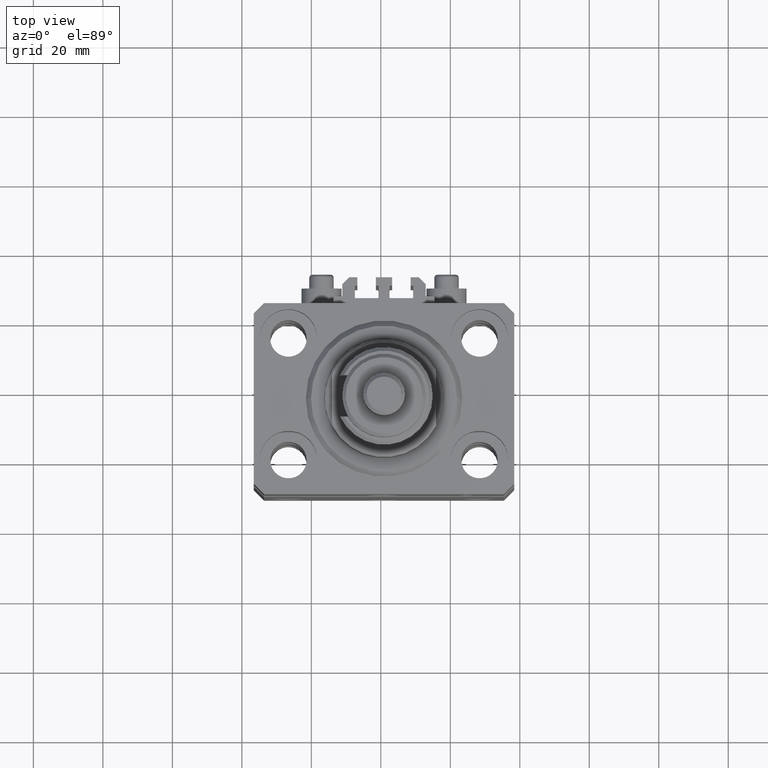
[diagram: clean part render]
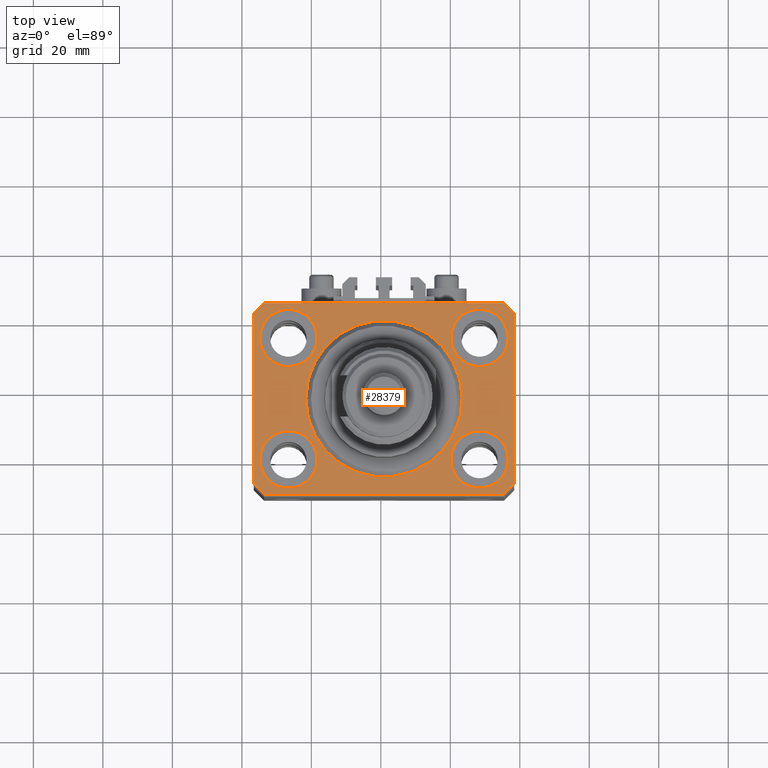
[diagram: same view with one face highlighted and labeled with its STEP entity id]
A machine part, top view. The second image highlights one B-rep face of the part: STEP entity #28379.
In plain terms, the highlighted planar face has unit normal (0, 0, 1).
Its self-contained STEP definition (entity closure, byte-faithful):
#39 = DIRECTION ( 'NONE',  ( 1.000000000000000000, 0.000000000000000000, 0.000000000000000000 ) ) ;
#339 = DIRECTION ( 'NONE',  ( 0.000000000000000000, 0.000000000000000000, 1.000000000000000000 ) ) ;
#343 = CARTESIAN_POINT ( 'NONE',  ( -27.50000000000000355, 17.50000000000000000, 0.000000000000000000 ) ) ;
#988 = CARTESIAN_POINT ( 'NONE',  ( -37.49999999999999289, 24.50000000000000000, 0.000000000000000000 ) ) ;
#1227 = LINE ( 'NONE', #9563, #14977 ) ;
#1230 = CIRCLE ( 'NONE', #23117, 8.250000000000000000 ) ;
#2059 = AXIS2_PLACEMENT_3D ( 'NONE', #41956, #22427, #19109 ) ;
#2349 = PLANE ( 'NONE',  #37253 ) ;
#2574 = VERTEX_POINT ( 'NONE', #46888 ) ;
#3100 = FACE_BOUND ( 'NONE', #13973, .T. ) ;
#3243 = EDGE_CURVE ( 'NONE', #42486, #8229, #31081, .T. ) ;
#3634 = CARTESIAN_POINT ( 'NONE',  ( 27.50000000000000355, -17.50000000000000000, 0.000000000000000000 ) ) ;
#3864 = EDGE_CURVE ( 'NONE', #18026, #38763, #23008, .T. ) ;
#4001 = CARTESIAN_POINT ( 'NONE',  ( 37.49999999999999289, -24.50000000000000000, 0.000000000000000000 ) ) ;
#4267 = ORIENTED_EDGE ( 'NONE', *, *, #44612, .T. ) ;
#5315 = CARTESIAN_POINT ( 'NONE',  ( -27.50000000000000355, -17.50000000000000000, 0.000000000000000000 ) ) ;
#5424 = ORIENTED_EDGE ( 'NONE', *, *, #7334, .F. ) ;
#5511 = ORIENTED_EDGE ( 'NONE', *, *, #29524, .F. ) ;
#5599 = ORIENTED_EDGE ( 'NONE', *, *, #32065, .T. ) ;
#5750 = CARTESIAN_POINT ( 'NONE',  ( -35.75000000000000711, 17.50000000000000000, 0.000000000000000000 ) ) ;
#5771 = DIRECTION ( 'NONE',  ( -1.000000000000000000, 0.000000000000000000, 0.000000000000000000 ) ) ;
#5837 = EDGE_CURVE ( 'NONE', #10716, #7855, #1227, .T. ) ;
#6001 = EDGE_CURVE ( 'NONE', #6476, #37050, #21999, .T. ) ;
#6081 = CARTESIAN_POINT ( 'NONE',  ( 19.25000000000000000, -17.50000000000000000, 0.000000000000000000 ) ) ;
#6476 = VERTEX_POINT ( 'NONE', #14303 ) ;
#6526 = DIRECTION ( 'NONE',  ( 0.7071067811865474617, 0.7071067811865474617, 0.000000000000000000 ) ) ;
#6550 = EDGE_CURVE ( 'NONE', #18765, #8607, #1230, .T. ) ;
#6802 = ORIENTED_EDGE ( 'NONE', *, *, #19095, .T. ) ;
#6972 = CIRCLE ( 'NONE', #32050, 22.50000000000000355 ) ;
#7334 = EDGE_CURVE ( 'NONE', #35199, #9966, #27968, .T. ) ;
#7731 = EDGE_CURVE ( 'NONE', #9966, #35199, #6972, .T. ) ;
#7763 = CARTESIAN_POINT ( 'NONE',  ( -27.50000000000000355, -17.50000000000000000, 0.000000000000000000 ) ) ;
#7855 = VERTEX_POINT ( 'NONE', #24858 ) ;
#8000 = DIRECTION ( 'NONE',  ( 1.000000000000000000, 0.000000000000000000, 0.000000000000000000 ) ) ;
#8229 = VERTEX_POINT ( 'NONE', #36093 ) ;
#8530 = CARTESIAN_POINT ( 'NONE',  ( 34.50000000000056843, 27.50000000000000000, 0.000000000000000000 ) ) ;
#8607 = VERTEX_POINT ( 'NONE', #6081 ) ;
#9563 = CARTESIAN_POINT ( 'NONE',  ( 34.50000000000056843, 27.50000000000000000, 0.000000000000000000 ) ) ;
#9966 = VERTEX_POINT ( 'NONE', #29078 ) ;
#10076 = EDGE_CURVE ( 'NONE', #7855, #30155, #12457, .T. ) ;
#10716 = VERTEX_POINT ( 'NONE', #8530 ) ;
#11430 = CARTESIAN_POINT ( 'NONE',  ( 0.000000000000000000, 0.000000000000000000, 0.000000000000000000 ) ) ;
#11991 = DIRECTION ( 'NONE',  ( 1.000000000000000000, 0.000000000000000000, 0.000000000000000000 ) ) ;
#12431 = AXIS2_PLACEMENT_3D ( 'NONE', #35079, #339, #11991 ) ;
#12457 = LINE ( 'NONE', #44151, #49179 ) ;
#12878 = ORIENTED_EDGE ( 'NONE', *, *, #43076, .F. ) ;
#12980 = VECTOR ( 'NONE', #27090, 1000.000000000000000 ) ;
#13472 = CIRCLE ( 'NONE', #30505, 8.250000000000000000 ) ;
#13731 = EDGE_CURVE ( 'NONE', #8229, #42486, #24162, .T. ) ;
#13973 = EDGE_LOOP ( 'NONE', ( #43295, #19449 ) ) ;
#14303 = CARTESIAN_POINT ( 'NONE',  ( 34.49999999999999289, -27.49999999999999645, 0.000000000000000000 ) ) ;
#14527 = CARTESIAN_POINT ( 'NONE',  ( -19.25000000000000355, 17.50000000000000000, 0.000000000000000000 ) ) ;
#14783 = EDGE_CURVE ( 'NONE', #2574, #30726, #50036, .T. ) ;
#14977 = VECTOR ( 'NONE', #5771, 1000.000000000000000 ) ;
#15835 = DIRECTION ( 'NONE',  ( 1.000000000000000000, 0.000000000000000000, 0.000000000000000000 ) ) ;
#15897 = CARTESIAN_POINT ( 'NONE',  ( 35.74999999999999289, 17.50000000000001066, 0.000000000000000000 ) ) ;
#16729 = DIRECTION ( 'NONE',  ( 1.000000000000000000, 0.000000000000000000, 0.000000000000000000 ) ) ;
#16984 = DIRECTION ( 'NONE',  ( 1.000000000000000000, 0.000000000000000000, 0.000000000000000000 ) ) ;
#17593 = VECTOR ( 'NONE', #35037, 1000.000000000000000 ) ;
#17744 = CARTESIAN_POINT ( 'NONE',  ( 37.49999999999999289, -24.50000000000000000, 0.000000000000000000 ) ) ;
#17912 = VERTEX_POINT ( 'NONE', #40137 ) ;
#18026 = VERTEX_POINT ( 'NONE', #14527 ) ;
#18495 = ORIENTED_EDGE ( 'NONE', *, *, #7731, .F. ) ;
#18571 = FACE_BOUND ( 'NONE', #31158, .T. ) ;
#18765 = VERTEX_POINT ( 'NONE', #24688 ) ;
#19095 = EDGE_CURVE ( 'NONE', #44574, #35340, #26942, .T. ) ;
#19109 = DIRECTION ( 'NONE',  ( 1.000000000000000000, 0.000000000000000000, 0.000000000000000000 ) ) ;
#19449 = ORIENTED_EDGE ( 'NONE', *, *, #13731, .F. ) ;
#19677 = DIRECTION ( 'NONE',  ( 1.000000000000000000, 0.000000000000000000, 0.000000000000000000 ) ) ;
#20785 = DIRECTION ( 'NONE',  ( 0.000000000000000000, 0.000000000000000000, 1.000000000000000000 ) ) ;
#20933 = DIRECTION ( 'NONE',  ( 0.000000000000000000, -1.000000000000000000, 0.000000000000000000 ) ) ;
#21296 = CARTESIAN_POINT ( 'NONE',  ( -34.49999999999998579, -27.49999999999999645, 0.000000000000000000 ) ) ;
#21387 = ORIENTED_EDGE ( 'NONE', *, *, #6550, .F. ) ;
#21604 = FACE_BOUND ( 'NONE', #48170, .T. ) ;
#21866 = LINE ( 'NONE', #37086, #33469 ) ;
#21999 = LINE ( 'NONE', #29121, #29569 ) ;
#22427 = DIRECTION ( 'NONE',  ( 0.000000000000000000, 0.000000000000000000, 1.000000000000000000 ) ) ;
#22735 = VECTOR ( 'NONE', #20933, 1000.000000000000000 ) ;
#22837 = ORIENTED_EDGE ( 'NONE', *, *, #3864, .F. ) ;
#23008 = CIRCLE ( 'NONE', #35975, 8.250000000000000000 ) ;
#23117 = AXIS2_PLACEMENT_3D ( 'NONE', #3634, #36273, #16984 ) ;
#23303 = AXIS2_PLACEMENT_3D ( 'NONE', #5315, #20785, #16729 ) ;
#24162 = CIRCLE ( 'NONE', #43598, 8.249999999999992895 ) ;
#24350 = EDGE_LOOP ( 'NONE', ( #42295, #34953, #39488, #6802, #4267, #33213, #5599, #29649 ) ) ;
#24688 = CARTESIAN_POINT ( 'NONE',  ( 35.75000000000000711, -17.50000000000000000, 0.000000000000000000 ) ) ;
#24858 = CARTESIAN_POINT ( 'NONE',  ( -34.49999999999999289, 27.50000000000000000, 0.000000000000000000 ) ) ;
#25315 = DIRECTION ( 'NONE',  ( 1.000000000000000000, 0.000000000000000000, 0.000000000000000000 ) ) ;
#25560 = CARTESIAN_POINT ( 'NONE',  ( -34.49999999999998579, -27.49999999999999645, 0.000000000000000000 ) ) ;
#25668 = DIRECTION ( 'NONE',  ( -0.7071067811865356934, 0.7071067811865594521, 0.000000000000000000 ) ) ;
#26942 = LINE ( 'NONE', #27692, #17593 ) ;
#26985 = DIRECTION ( 'NONE',  ( 0.000000000000000000, 0.000000000000000000, 1.000000000000000000 ) ) ;
#27090 = DIRECTION ( 'NONE',  ( 1.076236605503979380E-14, 1.000000000000000000, 0.000000000000000000 ) ) ;
#27171 = DIRECTION ( 'NONE',  ( 0.000000000000000000, 0.000000000000000000, 1.000000000000000000 ) ) ;
#27692 = CARTESIAN_POINT ( 'NONE',  ( -37.49999999999999289, -24.50000000000000000, 0.000000000000000000 ) ) ;
#27717 = DIRECTION ( 'NONE',  ( 1.000000000000000000, 0.000000000000000000, 0.000000000000000000 ) ) ;
#27968 = CIRCLE ( 'NONE', #2059, 22.50000000000000355 ) ;
#28133 = ORIENTED_EDGE ( 'NONE', *, *, #14783, .F. ) ;
#28379 = ADVANCED_FACE ( 'NONE', ( #21604, #37839, #3100, #37085, #18571, #29232 ), #2349, .T. ) ;
#28455 = DIRECTION ( 'NONE',  ( -0.7071067811865471286, -0.7071067811865479058, 0.000000000000000000 ) ) ;
#29078 = CARTESIAN_POINT ( 'NONE',  ( -22.50000000000000355, 2.755455298081545172E-15, 0.000000000000000000 ) ) ;
#29121 = CARTESIAN_POINT ( 'NONE',  ( 34.49999999999999289, -27.49999999999999645, 0.000000000000000000 ) ) ;
#29133 = CARTESIAN_POINT ( 'NONE',  ( -37.49999999999999289, -24.50000000000000000, 0.000000000000000000 ) ) ;
#29232 = FACE_OUTER_BOUND ( 'NONE', #24350, .T. ) ;
#29524 = EDGE_CURVE ( 'NONE', #30726, #2574, #40540, .T. ) ;
#29569 = VECTOR ( 'NONE', #6526, 1000.000000000000114 ) ;
#29633 = EDGE_CURVE ( 'NONE', #30155, #44574, #47848, .T. ) ;
#29649 = ORIENTED_EDGE ( 'NONE', *, *, #39391, .T. ) ;
#30155 = VERTEX_POINT ( 'NONE', #988 ) ;
#30505 = AXIS2_PLACEMENT_3D ( 'NONE', #343, #26985, #42445 ) ;
#30726 = VERTEX_POINT ( 'NONE', #47796 ) ;
#31081 = CIRCLE ( 'NONE', #12431, 8.249999999999992895 ) ;
#31158 = EDGE_LOOP ( 'NONE', ( #5424, #18495 ) ) ;
#32050 = AXIS2_PLACEMENT_3D ( 'NONE', #11430, #27171, #39 ) ;
#32065 = EDGE_CURVE ( 'NONE', #37050, #17912, #38259, .T. ) ;
#32515 = CARTESIAN_POINT ( 'NONE',  ( 27.49999999999999645, 17.50000000000001066, 0.000000000000000000 ) ) ;
#33213 = ORIENTED_EDGE ( 'NONE', *, *, #6001, .T. ) ;
#33469 = VECTOR ( 'NONE', #25668, 1000.000000000000114 ) ;
#34277 = CARTESIAN_POINT ( 'NONE',  ( 0.000000000000000000, 0.000000000000000000, 0.000000000000000000 ) ) ;
#34953 = ORIENTED_EDGE ( 'NONE', *, *, #10076, .T. ) ;
#35037 = DIRECTION ( 'NONE',  ( 0.7071067811865483499, -0.7071067811865466846, 0.000000000000000000 ) ) ;
#35079 = CARTESIAN_POINT ( 'NONE',  ( 27.49999999999999645, 17.50000000000001066, 0.000000000000000000 ) ) ;
#35199 = VERTEX_POINT ( 'NONE', #45267 ) ;
#35340 = VERTEX_POINT ( 'NONE', #21296 ) ;
#35623 = DIRECTION ( 'NONE',  ( 0.000000000000000000, 0.000000000000000000, 1.000000000000000000 ) ) ;
#35818 = DIRECTION ( 'NONE',  ( 0.000000000000000000, 0.000000000000000000, 1.000000000000000000 ) ) ;
#35975 = AXIS2_PLACEMENT_3D ( 'NONE', #42734, #35623, #15835 ) ;
#36093 = CARTESIAN_POINT ( 'NONE',  ( 19.25000000000000000, 17.50000000000001066, 0.000000000000000000 ) ) ;
#36185 = VECTOR ( 'NONE', #25315, 1000.000000000000000 ) ;
#36273 = DIRECTION ( 'NONE',  ( 0.000000000000000000, 0.000000000000000000, 1.000000000000000000 ) ) ;
#36978 = LINE ( 'NONE', #25560, #36185 ) ;
#37050 = VERTEX_POINT ( 'NONE', #17744 ) ;
#37085 = FACE_BOUND ( 'NONE', #40042, .T. ) ;
#37086 = CARTESIAN_POINT ( 'NONE',  ( 37.50000000000051870, 24.49999999999995381, 0.000000000000000000 ) ) ;
#37253 = AXIS2_PLACEMENT_3D ( 'NONE', #34277, #49528, #45697 ) ;
#37839 = FACE_BOUND ( 'NONE', #47620, .T. ) ;
#38259 = LINE ( 'NONE', #4001, #12980 ) ;
#38763 = VERTEX_POINT ( 'NONE', #5750 ) ;
#38946 = ORIENTED_EDGE ( 'NONE', *, *, #49028, .F. ) ;
#39391 = EDGE_CURVE ( 'NONE', #17912, #10716, #21866, .T. ) ;
#39431 = CARTESIAN_POINT ( 'NONE',  ( 27.50000000000000355, -17.50000000000000000, 0.000000000000000000 ) ) ;
#39488 = ORIENTED_EDGE ( 'NONE', *, *, #29633, .T. ) ;
#39507 = CIRCLE ( 'NONE', #42723, 8.250000000000000000 ) ;
#40042 = EDGE_LOOP ( 'NONE', ( #22837, #12878 ) ) ;
#40137 = CARTESIAN_POINT ( 'NONE',  ( 37.50000000000051870, 24.49999999999995381, 0.000000000000000000 ) ) ;
#40540 = CIRCLE ( 'NONE', #42963, 8.250000000000000000 ) ;
#41956 = CARTESIAN_POINT ( 'NONE',  ( 0.000000000000000000, 0.000000000000000000, 0.000000000000000000 ) ) ;
#42295 = ORIENTED_EDGE ( 'NONE', *, *, #5837, .T. ) ;
#42445 = DIRECTION ( 'NONE',  ( 1.000000000000000000, 0.000000000000000000, 0.000000000000000000 ) ) ;
#42486 = VERTEX_POINT ( 'NONE', #15897 ) ;
#42723 = AXIS2_PLACEMENT_3D ( 'NONE', #39431, #43484, #8000 ) ;
#42734 = CARTESIAN_POINT ( 'NONE',  ( -27.50000000000000355, 17.50000000000000000, 0.000000000000000000 ) ) ;
#42767 = DIRECTION ( 'NONE',  ( 0.000000000000000000, 0.000000000000000000, 1.000000000000000000 ) ) ;
#42963 = AXIS2_PLACEMENT_3D ( 'NONE', #7763, #42767, #19677 ) ;
#43076 = EDGE_CURVE ( 'NONE', #38763, #18026, #13472, .T. ) ;
#43295 = ORIENTED_EDGE ( 'NONE', *, *, #3243, .F. ) ;
#43484 = DIRECTION ( 'NONE',  ( 0.000000000000000000, 0.000000000000000000, 1.000000000000000000 ) ) ;
#43598 = AXIS2_PLACEMENT_3D ( 'NONE', #32515, #35818, #27717 ) ;
#44151 = CARTESIAN_POINT ( 'NONE',  ( -34.49999999999999289, 27.50000000000000000, 0.000000000000000000 ) ) ;
#44513 = CARTESIAN_POINT ( 'NONE',  ( -37.49999999999999289, 24.50000000000000000, 0.000000000000000000 ) ) ;
#44574 = VERTEX_POINT ( 'NONE', #29133 ) ;
#44612 = EDGE_CURVE ( 'NONE', #35340, #6476, #36978, .T. ) ;
#45267 = CARTESIAN_POINT ( 'NONE',  ( 22.50000000000000355, 0.000000000000000000, 0.000000000000000000 ) ) ;
#45697 = DIRECTION ( 'NONE',  ( 1.000000000000000000, 0.000000000000000000, -0.000000000000000000 ) ) ;
#46888 = CARTESIAN_POINT ( 'NONE',  ( -35.75000000000000711, -17.50000000000000000, 0.000000000000000000 ) ) ;
#47620 = EDGE_LOOP ( 'NONE', ( #21387, #38946 ) ) ;
#47796 = CARTESIAN_POINT ( 'NONE',  ( -19.25000000000000355, -17.50000000000000000, 0.000000000000000000 ) ) ;
#47848 = LINE ( 'NONE', #44513, #22735 ) ;
#48170 = EDGE_LOOP ( 'NONE', ( #5511, #28133 ) ) ;
#49028 = EDGE_CURVE ( 'NONE', #8607, #18765, #39507, .T. ) ;
#49179 = VECTOR ( 'NONE', #28455, 1000.000000000000000 ) ;
#49528 = DIRECTION ( 'NONE',  ( 0.000000000000000000, 0.000000000000000000, 1.000000000000000000 ) ) ;
#50036 = CIRCLE ( 'NONE', #23303, 8.250000000000000000 ) ;